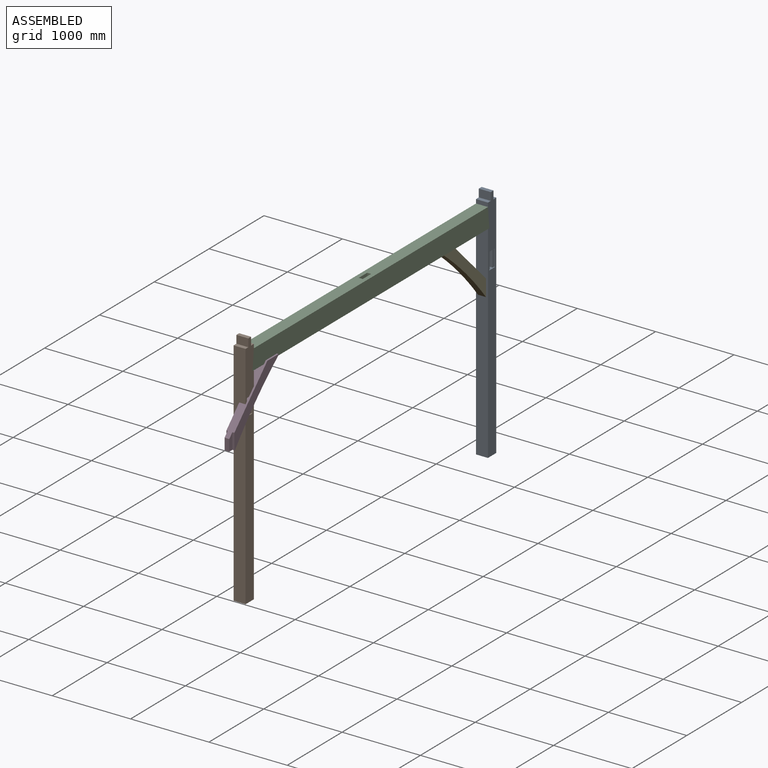
[diagram: assembled view]
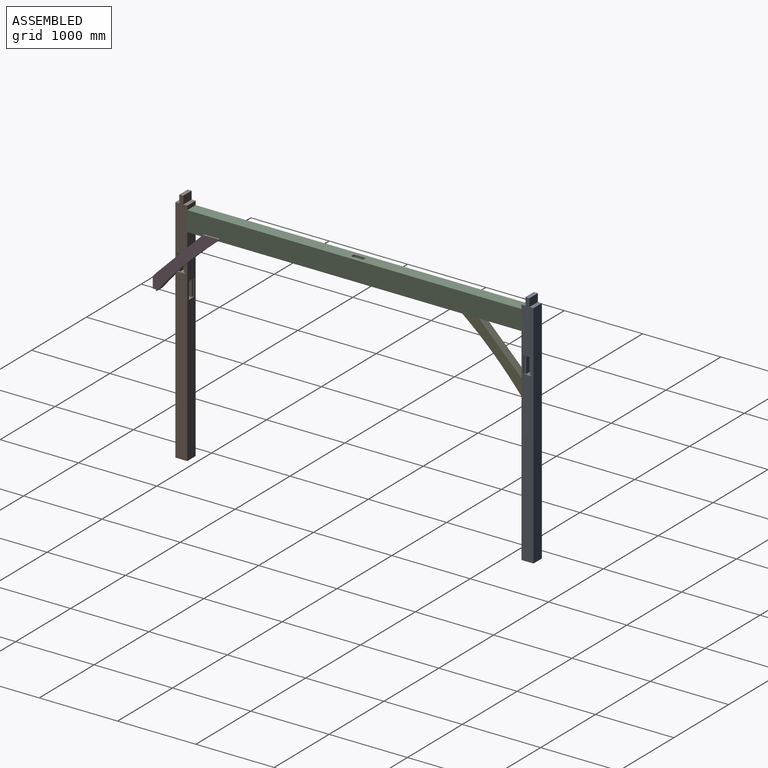
[diagram: assembled view, second angle]
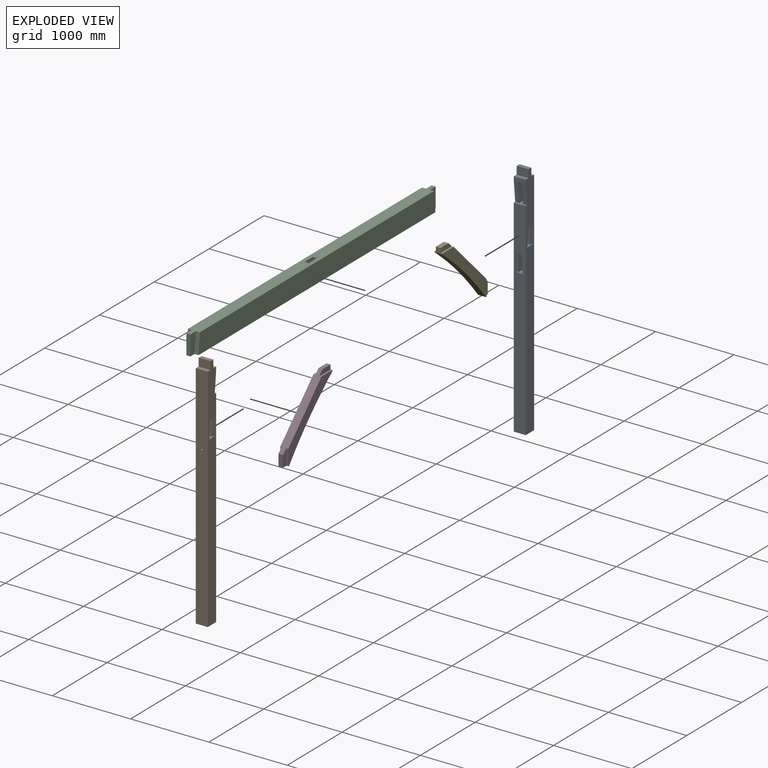
[diagram: exploded view]
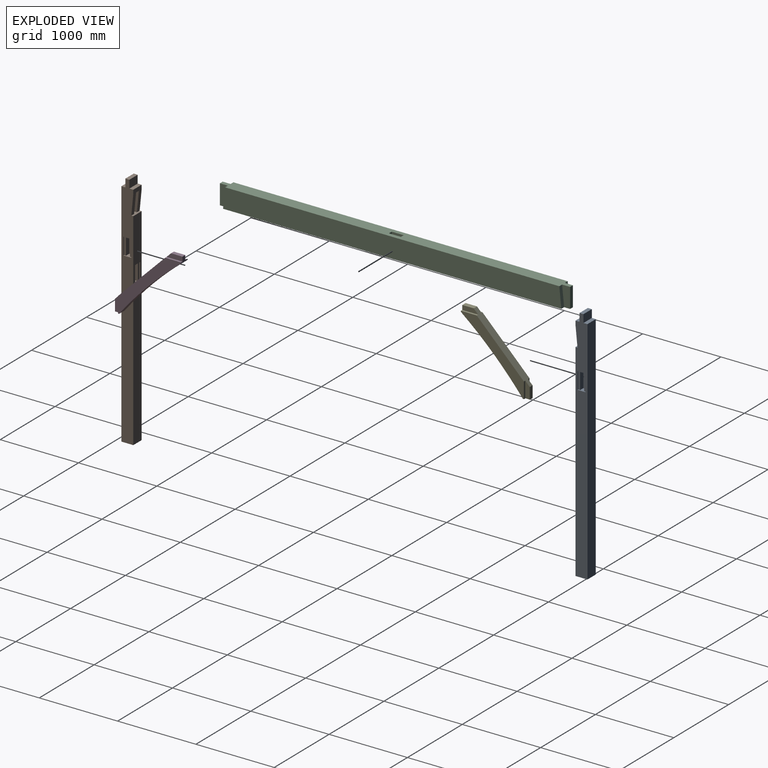
[diagram: exploded view, second angle]
ASSEMBLY  parts=5 mates=3
PART A: 45 faces, bbox 152.4x152.4x3048 mm
  f0: plane 3048x152.4mm, normal (-1,0,0), area 429070.1mm2, adj f3,f6,f7,f8,f9,f10,f11,f12
  f1: plane 101.6x71.12mm, normal (0,0,-1), area 4258.1mm2, adj f2,f29,f30,f31,f32,f33,f34,f35
  f2: plane 3048x152.4mm, normal (1,0,0), area 429070.1mm2, adj f1,f3,f6,f7,f8,f9,f10,f11
  f3: plane 2641.6x152.4mm, normal (0,1,0), area 380683.1mm2, adj f0,f2,f9,f14,f19,f21,f22,f23
  f4: plane 254x101.6mm, normal (-1,0,0), area 22580.6mm2, adj f14,f15,f16,f18
  f5: plane 254x101.6mm, normal (1,0,0), area 22580.6mm2, adj f14,f15,f16,f17
  f6: plane 152.4x50.8mm, normal (0,0,1), area 7741.9mm2, adj f0,f2,f10,f12
  f7: plane 2946.4x152.4mm, normal (0,-1,0), area 449031.4mm2, adj f0,f2,f9,f13
  f8: plane 152.4x50.8mm, normal (0,1,0), area 7741.9mm2, adj f0,f2,f11,f15,f17,f18
  f9: plane 152.4x152.4mm, normal (0,0,-1), area 23225.8mm2, adj f0,f2,f3,f7
  f10: plane 152.4x101.6mm, normal (0,1,0), area 15483.8mm2, adj f0,f2,f6,f11
  f11: plane 152.4x50.8mm, normal (0,0,1), area 7741.9mm2, adj f0,f2,f8,f10
  f12: plane 152.4x101.6mm, normal (0,-1,0), area 15483.8mm2, adj f0,f2,f6,f13
  f13: plane 152.4x50.8mm, normal (0,0,1), area 7741.9mm2, adj f0,f2,f7,f12
  f14: plane 152.4x101.6mm, normal (0,0,1), area 7741.9mm2, adj f0,f2,f3,f4,f5,f16,f17,f18
  f15: plane 101.6x50.8mm, normal (0,0,-1), area 5161.3mm2, adj f4,f5,f8,f16
  f16: plane 254x50.8mm, normal (0,1,0), area 12903.2mm2, adj f4,f5,f14,f15
  f17: plane 254x50.8mm, normal (0,1,-0.1), area 12967.6mm2, adj f0,f5,f8,f14
  f18: plane 254x50.8mm, normal (0,1,-0.1), area 12967.6mm2, adj f2,f4,f8,f14
  f19: plane 215.52x12.7mm, normal (1,0,0), area 2737.1mm2, adj f3,f20,f21,f23
  f20: plane 215.52x25.4mm, normal (0,1,0), area 5474.2mm2, adj f19,f21,f23,f25
  f21: plane 101.6x76.2mm, normal (0,0,1), area 4516.1mm2, adj f3,f19,f20,f22,f24,f25,f26,f27
  f22: plane 215.52x12.7mm, normal (-1,0,0), area 2737.1mm2, adj f3,f21,f23,f24
  f23: plane 101.6x76.2mm, normal (0,0,-1), area 4516.1mm2, adj f3,f19,f20,f22,f24,f25,f26,f27
  f24: plane 215.52x25.4mm, normal (0,1,0), area 5474.2mm2, adj f21,f22,f23,f26
  f25: plane 215.52x63.5mm, normal (1,0,0), area 13685.5mm2, adj f20,f21,f23,f27
  f26: plane 215.52x63.5mm, normal (-1,0,0), area 13685.5mm2, adj f21,f23,f24,f27
  f27: plane 215.52x50.8mm, normal (0,1,0), area 10948.4mm2, adj f21,f23,f25,f26
  f28: plane 101.6x71.12mm, normal (0,0,1), area 4258.1mm2, adj f2,f29,f30,f31,f32,f33,f34,f35
  f29: plane 215.52x12.7mm, normal (0,1,0), area 2737.1mm2, adj f1,f2,f28,f32
  f30: plane 215.52x12.7mm, normal (0,-1,0), area 2737.1mm2, adj f1,f2,f28,f34
  f31: plane 215.52x58.42mm, normal (0,1,0), area 12590.6mm2, adj f1,f28,f32,f35
  f32: plane 215.52x25.4mm, normal (1,0,0), area 5474.2mm2, adj f1,f28,f29,f31
  f33: plane 215.52x58.42mm, normal (0,-1,0), area 12590.6mm2, adj f1,f28,f34,f35
  f34: plane 215.52x25.4mm, normal (1,0,0), area 5474.2mm2, adj f1,f28,f30,f33
  f35: plane 215.52x50.8mm, normal (1,0,0), area 10948.4mm2, adj f1,f28,f31,f33
  f36: plane 215.52x12.7mm, normal (0,1,0), area 2737.1mm2, adj f0,f37,f38,f39
  f37: plane 215.52x25.4mm, normal (-1,0,0), area 5474.2mm2, adj f36,f38,f39,f42
  f38: plane 101.6x71.12mm, normal (0,0,1), area 4258.1mm2, adj f0,f36,f37,f40,f41,f42,f43,f44
  f39: plane 101.6x71.12mm, normal (0,0,-1), area 4258.1mm2, adj f0,f36,f37,f40,f41,f42,f43,f44
  f40: plane 215.52x12.7mm, normal (0,-1,0), area 2737.1mm2, adj f0,f38,f39,f41
  f41: plane 215.52x25.4mm, normal (-1,0,0), area 5474.2mm2, adj f38,f39,f40,f43
  f42: plane 215.52x58.42mm, normal (0,1,0), area 12590.6mm2, adj f37,f38,f39,f44
  f43: plane 215.52x58.42mm, normal (0,-1,0), area 12590.6mm2, adj f38,f39,f41,f44
  f44: plane 215.52x50.8mm, normal (-1,0,0), area 10948.4mm2, adj f38,f39,f42,f43
PART B: 47 faces, bbox 152.4x152.4x3048 mm
  f0: plane 3048x152.4mm, normal (-1,0,0), area 429070.1mm2, adj f3,f6,f7,f8,f9,f10,f11,f12
  f1: plane 101.6x71.12mm, normal (0,0,-1), area 4258.1mm2, adj f2,f29,f30,f31,f32,f33,f34,f35
  f2: plane 3048x152.4mm, normal (1,0,0), area 429070.1mm2, adj f1,f3,f6,f7,f8,f9,f10,f11
  f3: plane 2641.6x152.4mm, normal (0,1,0), area 380683.1mm2, adj f0,f2,f9,f14,f19,f21,f22,f23
  f4: plane 254x101.6mm, normal (-1,0,0), area 22580.6mm2, adj f14,f15,f16,f18
  f5: plane 254x101.6mm, normal (1,0,0), area 22580.6mm2, adj f14,f15,f16,f17
  f6: plane 152.4x50.8mm, normal (0,0,1), area 7741.9mm2, adj f0,f2,f10,f12
  f7: plane 2946.4x152.4mm, normal (0,-1,0), area 448524.7mm2, adj f0,f2,f9,f13,f45
  f8: plane 152.4x50.8mm, normal (0,1,0), area 7741.9mm2, adj f0,f2,f11,f15,f17,f18
  f9: plane 152.4x152.4mm, normal (0,0,-1), area 23225.8mm2, adj f0,f2,f3,f7
  f10: plane 152.4x101.6mm, normal (0,1,0), area 15483.8mm2, adj f0,f2,f6,f11
  f11: plane 152.4x50.8mm, normal (0,0,1), area 7741.9mm2, adj f0,f2,f8,f10
  f12: plane 152.4x101.6mm, normal (0,-1,0), area 15483.8mm2, adj f0,f2,f6,f13
  f13: plane 152.4x50.8mm, normal (0,0,1), area 7741.9mm2, adj f0,f2,f7,f12
  f14: plane 152.4x101.6mm, normal (0,0,1), area 7741.9mm2, adj f0,f2,f3,f4,f5,f16,f17,f18
  f15: plane 101.6x50.8mm, normal (0,0,-1), area 5161.3mm2, adj f4,f5,f8,f16
  f16: plane 254x50.8mm, normal (0,1,0), area 12903.2mm2, adj f4,f5,f14,f15
  f17: plane 254x50.8mm, normal (0,1,-0.1), area 12967.6mm2, adj f0,f5,f8,f14
  f18: plane 254x50.8mm, normal (0,1,-0.1), area 12967.6mm2, adj f2,f4,f8,f14
  f19: plane 215.52x12.7mm, normal (1,0,0), area 2737.1mm2, adj f3,f20,f21,f23
  f20: plane 215.52x25.4mm, normal (0,1,0), area 5474.2mm2, adj f19,f21,f23,f25
  f21: plane 101.6x76.2mm, normal (0,0,1), area 4516.1mm2, adj f3,f19,f20,f22,f24,f25,f26,f27
  f22: plane 215.52x12.7mm, normal (-1,0,0), area 2737.1mm2, adj f3,f21,f23,f24
  f23: plane 101.6x76.2mm, normal (0,0,-1), area 4516.1mm2, adj f3,f19,f20,f22,f24,f25,f26,f27
  f24: plane 215.52x25.4mm, normal (0,1,0), area 5474.2mm2, adj f21,f22,f23,f26
  f25: plane 215.52x63.5mm, normal (1,0,0), area 13685.5mm2, adj f20,f21,f23,f27
  f26: plane 215.52x63.5mm, normal (-1,0,0), area 13685.5mm2, adj f21,f23,f24,f27
  f27: plane 215.52x50.8mm, normal (0,1,0), area 10948.4mm2, adj f21,f23,f25,f26
  f28: plane 101.6x71.12mm, normal (0,0,1), area 4258.1mm2, adj f2,f29,f30,f31,f32,f33,f34,f35
  f29: plane 215.52x12.7mm, normal (0,1,0), area 2737.1mm2, adj f1,f2,f28,f32
  f30: plane 215.52x12.7mm, normal (0,-1,0), area 2737.1mm2, adj f1,f2,f28,f34
  f31: plane 215.52x58.42mm, normal (0,1,0), area 12590.6mm2, adj f1,f28,f32,f35
  f32: plane 215.52x25.4mm, normal (1,0,0), area 5474.2mm2, adj f1,f28,f29,f31
  f33: plane 215.52x58.42mm, normal (0,-1,0), area 12590.6mm2, adj f1,f28,f34,f35
  f34: plane 215.52x25.4mm, normal (1,0,0), area 5474.2mm2, adj f1,f28,f30,f33
  f35: plane 215.52x50.8mm, normal (1,0,0), area 10948.4mm2, adj f1,f28,f31,f33
  f36: plane 215.52x12.7mm, normal (0,1,0), area 2737.1mm2, adj f0,f37,f38,f39
  f37: plane 215.52x25.4mm, normal (-1,0,0), area 5474.2mm2, adj f36,f38,f39,f42
  f38: plane 101.6x71.12mm, normal (0,0,1), area 4258.1mm2, adj f0,f36,f37,f40,f41,f42,f43,f44
  f39: plane 101.6x71.12mm, normal (0,0,-1), area 4258.1mm2, adj f0,f36,f37,f40,f41,f42,f43,f44
  f40: plane 215.52x12.7mm, normal (0,-1,0), area 2737.1mm2, adj f0,f38,f39,f41
  f41: plane 215.52x25.4mm, normal (-1,0,0), area 5474.2mm2, adj f38,f39,f40,f43
  f42: plane 215.52x58.42mm, normal (0,1,0), area 12590.6mm2, adj f37,f38,f39,f44
  f43: plane 215.52x58.42mm, normal (0,-1,0), area 12590.6mm2, adj f38,f39,f41,f44
  f44: plane 215.52x50.8mm, normal (-1,0,0), area 10948.4mm2, adj f38,f39,f42,f43
  f45: cylinder r=12.7mm len=25.4mm, axis (0,-1,0), area 2026.8mm2, adj f7,f46
  f46: plane 25.4x25.4mm, normal (0,-1,0), area 506.7mm2, adj f45
PART C: 37 faces, bbox 4470.4x152.4x254 mm
  f0: plane 4470.4x152.4mm, normal (0,0,-1), area 652901.9mm2, adj f2,f3,f4,f5,f6,f7,f8,f9
  f1: plane 4470.4x152.4mm, normal (0,0,1), area 622011.7mm2, adj f2,f3,f4,f5,f6,f7,f8,f9
  f2: plane 254x101.6mm, normal (0,-1,0), area 22580.6mm2, adj f0,f1,f4,f13
  f3: plane 254x101.6mm, normal (0,1,0), area 22580.6mm2, adj f0,f1,f4,f12
  f4: plane 254x50.8mm, normal (1,0,0), area 12903.2mm2, adj f0,f1,f2,f3
  f5: plane 4318x254mm, normal (0,-1,0), area 1090320.4mm2, adj f0,f1,f11,f13
  f6: plane 4318x254mm, normal (0,1,0), area 1090320.4mm2, adj f0,f1,f10,f12
  f7: plane 254x50.8mm, normal (-1,0,0), area 12903.2mm2, adj f0,f1,f8,f9
  f8: plane 254x101.6mm, normal (0,-1,0), area 22580.6mm2, adj f0,f1,f7,f11
  f9: plane 254x101.6mm, normal (0,1,0), area 22580.6mm2, adj f0,f1,f7,f10
  f10: plane 254x50.8mm, normal (-1,0,-0.1), area 12967.6mm2, adj f0,f1,f6,f9
  f11: plane 254x50.8mm, normal (-1,0,-0.1), area 12967.6mm2, adj f0,f1,f5,f8
  f12: plane 254x50.8mm, normal (1,0,-0.1), area 12967.6mm2, adj f0,f1,f3,f6
  f13: plane 254x50.8mm, normal (1,0,-0.1), area 12967.6mm2, adj f0,f1,f2,f5
  f14: plane 215.52x63.5mm, normal (0,-1,0), area 13685.5mm2, adj f15,f17,f18,f29
  f15: plane 101.6x76.2mm, normal (1,0,0), area 4516.1mm2, adj f1,f14,f16,f18,f26,f27,f28,f29
  f16: plane 215.52x63.5mm, normal (0,1,0), area 13685.5mm2, adj f15,f17,f18,f27
  f17: plane 101.6x76.2mm, normal (-1,0,0), area 4516.1mm2, adj f1,f14,f16,f18,f26,f27,f28,f29
  f18: plane 215.52x50.8mm, normal (0,0,1), area 10948.4mm2, adj f14,f15,f16,f17
  f19: plane 101.6x76.2mm, normal (1,0,0), area 4516.1mm2, adj f1,f20,f22,f23,f24,f25,f30,f31
  f20: plane 215.52x63.5mm, normal (0,1,0), area 13685.5mm2, adj f19,f21,f23,f25
  f21: plane 101.6x76.2mm, normal (-1,0,0), area 4516.1mm2, adj f1,f20,f22,f23,f24,f25,f30,f31
  f22: plane 215.52x63.5mm, normal (0,-1,0), area 13685.5mm2, adj f19,f21,f23,f31
  f23: plane 215.52x50.8mm, normal (0,0,1), area 10948.4mm2, adj f19,f20,f21,f22
  f24: plane 215.52x12.7mm, normal (0,1,0), area 2737.1mm2, adj f1,f19,f21,f25
  f25: plane 215.52x25.4mm, normal (0,0,1), area 5474.2mm2, adj f19,f20,f21,f24
  f26: plane 215.52x12.7mm, normal (0,1,0), area 2737.1mm2, adj f1,f15,f17,f27
  f27: plane 215.52x25.4mm, normal (0,0,1), area 5474.2mm2, adj f15,f16,f17,f26
  f28: plane 215.52x12.7mm, normal (0,-1,0), area 2737.1mm2, adj f1,f15,f17,f29
  f29: plane 215.52x25.4mm, normal (0,0,1), area 5474.2mm2, adj f14,f15,f17,f28
  f30: plane 215.52x12.7mm, normal (0,-1,0), area 2737.1mm2, adj f1,f19,f21,f31
  f31: plane 215.52x25.4mm, normal (0,0,1), area 5474.2mm2, adj f19,f21,f22,f30
  f32: plane 152.4x101.6mm, normal (0,-1,0), area 15483.8mm2, adj f0,f33,f35,f36
  f33: plane 101.6x50.8mm, normal (-1,0,0), area 5161.3mm2, adj f0,f32,f34,f36
  f34: plane 152.4x101.6mm, normal (0,1,0), area 15483.8mm2, adj f0,f33,f35,f36
  f35: plane 101.6x50.8mm, normal (1,0,0), area 5161.3mm2, adj f0,f32,f34,f36
  f36: plane 152.4x50.8mm, normal (0,0,-1), area 7741.9mm2, adj f32,f33,f34,f35
PART D: 16 faces, bbox 1218.6x101.6x152.4 mm
  f0: plane 101.6x49.39mm, normal (-0.71,0,-0.71), area 4193.5mm2, adj f1,f4,f5,f7,f10,f11,f12,f13
  f1: plane 1137.74x152.4mm, normal (0,-1,0), area 129225.2mm2, adj f0,f2,f3,f5,f12,f14
  f2: plane 1012.54x101.6mm, normal (0,0,1), area 95386mm2, adj f1,f4,f6,f7,f8,f9,f10,f11
  f3: plane 101.6x49.39mm, normal (0.71,0,-0.71), area 4704.8mm2, adj f1,f4,f5,f6,f8,f9,f14,f15
  f4: plane 1137.74x152.4mm, normal (0,1,0), area 129225.2mm2, adj f0,f2,f3,f5,f8,f10
  f5: cylinder r=4994.47mm len=1119.78mm, axis (0,1,0), area 114009.2mm2, adj f0,f1,f3,f4
  f6: plane 103.01x103.01mm, normal (0.71,0,0.71), area 8703.5mm2, adj f2,f3,f9,f15
  f7: plane 103.01x103.01mm, normal (-0.71,0,0.71), area 7400.3mm2, adj f0,f2,f11,f13
  f8: plane 143.42x143.42mm, normal (0.71,0,0.71), area 5151.8mm2, adj f2,f3,f4,f9
  f9: plane 183.83x143.42mm, normal (0,1,0), area 9958.5mm2, adj f2,f3,f6,f8
  f10: plane 143.42x143.42mm, normal (-0.71,0,0.71), area 5151.8mm2, adj f0,f2,f4,f11
  f11: plane 183.83x143.42mm, normal (0,1,0), area 9958.5mm2, adj f0,f2,f7,f10
  f12: plane 143.42x143.42mm, normal (-0.71,0,0.71), area 5151.8mm2, adj f0,f1,f2,f13
  f13: plane 183.83x143.42mm, normal (0,-1,0), area 9958.5mm2, adj f0,f2,f7,f12
  f14: plane 143.42x143.42mm, normal (0.71,0,0.71), area 3337.3mm2, adj f1,f2,f3,f15
  f15: plane 183.83x143.42mm, normal (0,-1,0), area 9958.5mm2, adj f2,f3,f6,f14
PART E: same geometry as D
PLACE A rot(axis=(0,0,-1),180deg) t=(-611.88,3281.09,-303.36)mm
PLACE B t=(-611.88,-986.11,-303.36)mm
PLACE C rot(axis=(-0.71,-0.71,0),180deg) t=(-535.68,1147.49,941.24)mm
PLACE D rot(axis=(0.36,0.36,-0.86),98.4deg) t=(-514.4,-1071.66,546.87)mm
PLACE E rot(axis=(-0.36,-0.36,-0.86),98.4deg) t=(-561.08,2992.96,526.1)mm
MATE fastened B.f16 <-> C.f7  axis (0,1,0) through (-611.88,-1087.71,814.24)mm
MATE fastened C.f4 <-> A.f16  axis (0,1,0) through (-611.88,3382.69,814.24)mm
MATE fastened E.f3 <-> C.f19  axis (0,-1,0) through (-611.88,2489.29,814.24)mm
